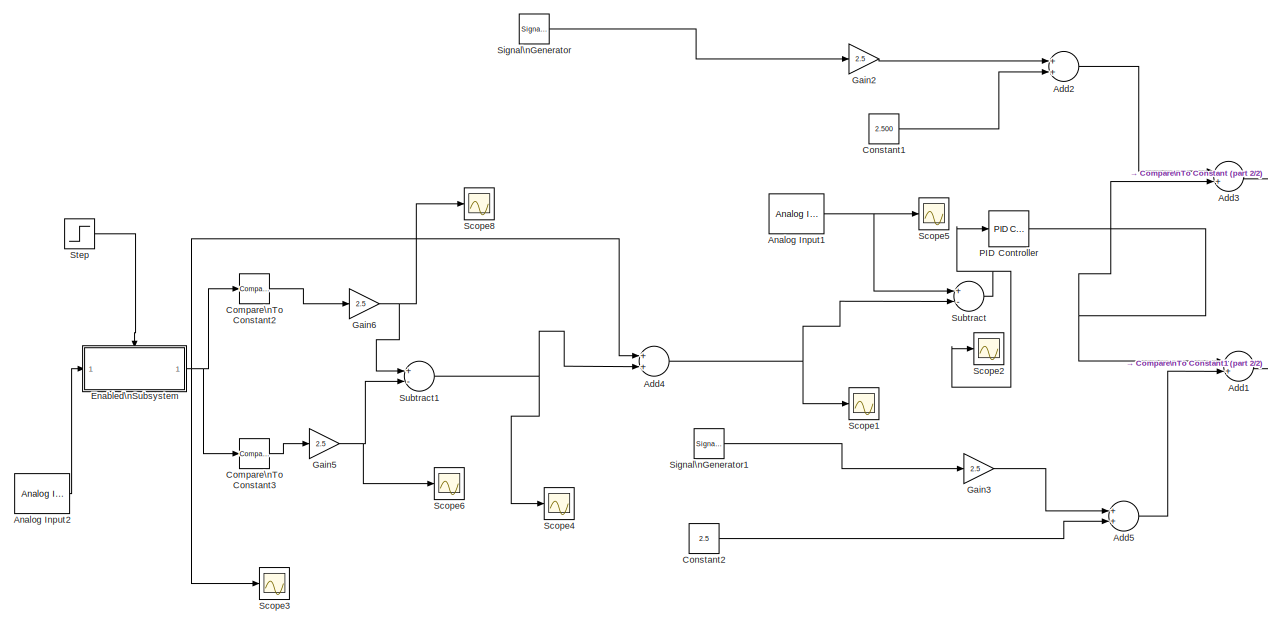
[diagram: root canvas - part 1/2, most of the canvas]
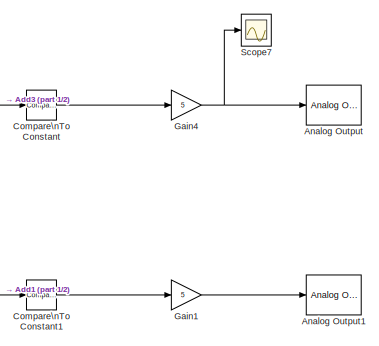
[diagram: root canvas - part 2/2, middle right region]
MODEL exp1slx
KIND model
BLOCK [Sum] Add1
  InputSameDT = off
  Inputs = -+
  OutDataTypeStr = Inherit: Inherit via internal rule
  Ports = [2, 1]
  SID = 44
  SaturateOnIntegerOverflow = off
BLOCK [Sum] Add2
  InputSameDT = off
  OutDataTypeStr = Inherit: Inherit via internal rule
  Ports = [2, 1]
  SID = 48
  SaturateOnIntegerOverflow = off
BLOCK [Sum] Add3
  InputSameDT = off
  Inputs = -+
  OutDataTypeStr = Inherit: Inherit via internal rule
  Ports = [2, 1]
  SID = 40
  SaturateOnIntegerOverflow = off
BLOCK [Sum] Add4
  InputSameDT = off
  OutDataTypeStr = Inherit: Inherit via internal rule
  Ports = [2, 1]
  SID = 92
  SaturateOnIntegerOverflow = off
BLOCK [Sum] Add5
  InputSameDT = off
  OutDataTypeStr = Inherit: Inherit via internal rule
  Ports = [2, 1]
  SID = 51
  SaturateOnIntegerOverflow = off
BLOCK [Reference] Analog Input1  REF=rtwinlib/Analog Input
  AttributesFormatString = National Instruments\\nPCI-6221 37-pin [0h]
  Channels = 1
  DataType = 1
  DrvAddress = 0
  DrvName = National_Instruments/PCI-6221_37-pin
  DrvOptions = [0 3 0 0 0]
  MaxMissedTicks = 10000
  Ports = [0, 1]
  RangeMode = 1
  SID = 54
  SampleTime = 0.001
  ShowMissedTicks = off
  SourceBlock = rtwinlib/Analog Input
  SourceType = RTWin Analog Input
  VoltRange = 1
  YieldWhenWaiting = off
BLOCK [Reference] Analog Input2  REF=rtwinlib/Analog Input
  AttributesFormatString = National Instruments\\nPCI-6221 37-pin [0h]
  Channels = 1
  DataType = 1
  DrvAddress = 0
  DrvName = National_Instruments/PCI-6221_37-pin
  DrvOptions = [0 3 0 0 0]
  MaxMissedTicks = 10000
  Ports = [0, 1]
  RangeMode = 1
  SID = 85
  SampleTime = 0.001
  ShowMissedTicks = off
  SourceBlock = rtwinlib/Analog Input
  SourceType = RTWin Analog Input
  VoltRange = 1
  YieldWhenWaiting = off
BLOCK [Reference] Analog Output  REF=rtwinlib/Analog Output
  AttributesFormatString = National Instruments\\nPCI-6221 37-pin [0h]
  Channels = 1
  DrvAddress = 0
  DrvName = National_Instruments/PCI-6221_37-pin
  DrvOptions = [0 3 0 0 0]
  FinalValue = 0
  InitialValue = 0
  MaxMissedTicks = 10000
  Ports = [1]
  RangeMode = 1
  SID = 41
  SampleTime = 0.001
  ShowMissedTicks = off
  SourceBlock = rtwinlib/Analog Output
  SourceType = RTWin Analog Output
  VoltRange = 1
  YieldWhenWaiting = off
BLOCK [Reference] Analog Output1  REF=rtwinlib/Analog Output
  AttributesFormatString = National Instruments\\nPCI-6221 37-pin [0h]
  Channels = 2
  DrvAddress = 0
  DrvName = National_Instruments/PCI-6221_37-pin
  DrvOptions = [0 3 0 0 0]
  FinalValue = 0
  InitialValue = 0
  MaxMissedTicks = 10000
  Ports = [1]
  RangeMode = 1
  SID = 45
  SampleTime = 0.001
  ShowMissedTicks = off
  SourceBlock = rtwinlib/Analog Output
  SourceType = RTWin Analog Output
  VoltRange = 1
  YieldWhenWaiting = off
BLOCK [Reference] Compare\nTo Constant  REF=simulink/Logic and Bit\nOperations/Compare\nTo Constant
  OutDataTypeStr = uint8
  Ports = [1, 1]
  SID = 42
  SourceBlock = simulink/Logic and Bit\nOperations/Compare\nTo Constant
  SourceType = Compare To Constant
  ZeroCross = on
  const = 0
  relop = <=
BLOCK [Reference] Compare\nTo Constant1  REF=simulink/Logic and Bit\nOperations/Compare\nTo Constant
  OutDataTypeStr = uint8
  Ports = [1, 1]
  SID = 46
  SourceBlock = simulink/Logic and Bit\nOperations/Compare\nTo Constant
  SourceType = Compare To Constant
  ZeroCross = on
  const = 0
  relop = <=
BLOCK [Reference] Compare\nTo Constant2  REF=simulink/Logic and Bit\nOperations/Compare\nTo Constant
  OutDataTypeStr = boolean
  Ports = [1, 1]
  SID = 97
  SourceBlock = simulink/Logic and Bit\nOperations/Compare\nTo Constant
  SourceType = Compare To Constant
  ZeroCross = on
  const = 2.5
  relop = <=
BLOCK [Reference] Compare\nTo Constant3  REF=simulink/Logic and Bit\nOperations/Compare\nTo Constant
  OutDataTypeStr = boolean
  Ports = [1, 1]
  SID = 98
  SourceBlock = simulink/Logic and Bit\nOperations/Compare\nTo Constant
  SourceType = Compare To Constant
  ZeroCross = on
  const = 2.5
  relop = >=
BLOCK [Constant] Constant1
  SID = 49
  Value = 2.500
BLOCK [Constant] Constant2
  SID = 52
  Value = 2.5
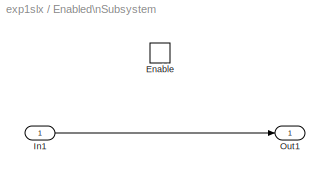
BLOCK [SubSystem] Enabled\nSubsystem
  FunctionWithSeparateData = off
  MaskHideContents = off
  MinAlgLoopOccurrences = off
  Opaque = off
  Ports = [1, 1, 1]
  PropExecContextOutsideSubsystem = off
  RTWSystemCode = Auto
  RequestExecContextInheritance = off
  SID = 87
  TreatAsAtomicUnit = on
BLOCK [EnablePort] Enabled\nSubsystem/Enable
  Ports = []
  SID = 89
BLOCK [Inport] Enabled\nSubsystem/In1
  IconDisplay = Port number
  SID = 88
BLOCK [Outport] Enabled\nSubsystem/Out1
  IconDisplay = Port number
  SID = 90
BLOCK [Gain] Gain1
  Gain = 5
  OutMin = 0
  ParamDataTypeStr = Inherit: Inherit via internal rule
  ParamMin = 0
  RndMeth = Ceiling
  SID = 47
  SaturateOnIntegerOverflow = off
BLOCK [Gain] Gain2
  Gain = 2.5
  OutMin = 0
  ParamDataTypeStr = Inherit: Inherit via internal rule
  ParamMin = 0
  RndMeth = Ceiling
  SID = 62
  SaturateOnIntegerOverflow = off
BLOCK [Gain] Gain3
  Gain = 2.5
  OutMin = 0
  ParamDataTypeStr = Inherit: Inherit via internal rule
  ParamMin = 0
  RndMeth = Ceiling
  SID = 65
  SaturateOnIntegerOverflow = off
BLOCK [Gain] Gain4
  Gain = 5
  OutMin = 0
  ParamDataTypeStr = Inherit: Inherit via internal rule
  ParamMin = 0
  RndMeth = Ceiling
  SID = 43
  SaturateOnIntegerOverflow = off
BLOCK [Gain] Gain5
  Gain = 2.5
  OutDataTypeStr = double
  OutMin = 0
  ParamDataTypeStr = Inherit: Inherit via internal rule
  ParamMin = 0
  RndMeth = Ceiling
  SID = 108
  SaturateOnIntegerOverflow = off
BLOCK [Gain] Gain6
  Gain = 2.5
  OutDataTypeStr = double
  OutMin = 0
  ParamDataTypeStr = Inherit: Inherit via internal rule
  ParamMin = 0
  RndMeth = Ceiling
  SID = 109
  SaturateOnIntegerOverflow = off
BLOCK [Reference] PID Controller  REF=simulink/Continuous/PID Controller
  AntiWindupMode = none
  Controller = PID
  D = 1
  DOutDataTypeStr = Inherit: Inherit via internal rule
  DOutMax = []
  DOutMin = []
  DParamDataTypeStr = Inherit: Inherit via internal rule
  DParamMax = []
  DParamMin = []
  ExternalReset = none
  FilterContinuousStateAttributes = ''
  FilterMethod = Forward Euler
  FilterOutDataTypeStr = Inherit: Inherit via internal rule
  FilterOutMax = []
  FilterOutMin = []
  FilterRTWStateStorageClass = Auto
  FilterStateMustResolveToSignalObject = off
  Form = Parallel
  I = 1
  IOutDataTypeStr = Inherit: Inherit via internal rule
  IOutMax = []
  IOutMin = []
  IParamDataTypeStr = Inherit: Inherit via internal rule
  IParamMax = []
  IParamMin = []
  IgnoreLimit = off
  InitialConditionForFilter = 0
  InitialConditionForIntegrator = 0
  InitialConditionSource = internal
  IntegratorContinuousStateAttributes = ''
  IntegratorMethod = Forward Euler
  IntegratorOutDataTypeStr = Inherit: Inherit via internal rule
  IntegratorOutMax = []
  IntegratorOutMin = []
  IntegratorRTWStateStorageClass = Auto
  IntegratorStateMustResolveToSignalObject = off
  Kb = 1
  KbOutDataTypeStr = Inherit: Inherit via internal rule
  KbOutMax = []
  KbOutMin = []
  KbParamDataTypeStr = Inherit: Inherit via internal rule
  KbParamMax = []
  KbParamMin = []
  Kt = 1
  KtOutDataTypeStr = Inherit: Inherit via internal rule
  KtOutMax = []
  KtOutMin = []
  KtParamDataTypeStr = Inherit: Inherit via internal rule
  KtParamMax = []
  KtParamMin = []
  LimitOutput = off
  LinearizeAsGain = on
  LockScale = off
  LowerSaturationLimit = -inf
  N = 100
  NOutDataTypeStr = Inherit: Inherit via internal rule
  NOutMax = []
  NOutMin = []
  NParamDataTypeStr = Inherit: Inherit via internal rule
  NParamMax = []
  NParamMin = []
  P = 60
  POutDataTypeStr = Inherit: Inherit via internal rule
  POutMax = []
  POutMin = []
  PParamDataTypeStr = Inherit: Inherit via internal rule
  PParamMax = []
  PParamMin = []
  Ports = [1, 1]
  RndMeth = Floor
  SID = 5
  SampleTime = 1
  SaturateOnIntegerOverflow = off
  SaturationOutDataTypeStr = Inherit: Same as input
  SaturationOutMax = []
  SaturationOutMin = []
  SourceBlock = simulink/Continuous/PID Controller
  SourceType = PID 1dof
  SumAccumDataTypeStr = Inherit: Inherit via internal rule
  SumDAccumDataTypeStr = Inherit: Inherit via internal rule
  SumDOutDataTypeStr = Inherit: Inherit via internal rule
  SumDOutMax = []
  SumDOutMin = []
  SumI1AccumDataTypeStr = Inherit: Inherit via internal rule
  SumI1OutDataTypeStr = Inherit: Inherit via internal rule
  SumI1OutMax = []
  SumI1OutMin = []
  SumI2AccumDataTypeStr = Inherit: Inherit via internal rule
  SumI2OutDataTypeStr = Inherit: Inherit via internal rule
  SumI2OutMax = []
  SumI2OutMin = []
  SumI3AccumDataTypeStr = Inherit: Inherit via internal rule
  SumI3OutDataTypeStr = Inherit: Inherit via internal rule
  SumI3OutMax = []
  SumI3OutMin = []
  SumOutDataTypeStr = Inherit: Inherit via internal rule
  SumOutMax = []
  SumOutMin = []
  TimeDomain = Continuous-time
  TrackingMode = off
  UpperSaturationLimit = inf
  ZeroCross = on
BLOCK [Scope] Scope1
  DataFormat = StructureWithTime
  Floating = off
  MaxDataPoints = 1000000
  NumInputPorts = 1
  Ports = [1]
  SID = 95
  SampleTime = 0
  SaveName = ScopeData1
  SaveToWorkspace = on
  ShowLegends = off
  TimeRange = 10
  YMax = 3.5
  YMin = -3
BLOCK [Scope] Scope2
  DataFormat = StructureWithTime
  Floating = off
  MaxDataPoints = 1000000
  NumInputPorts = 1
  Ports = [1]
  SID = 55
  SampleTime = 0
  SaveToWorkspace = on
  ShowLegends = off
  TimeRange = 2
  YMax = 2.205806010928962
  YMin = 0.8058060109289615
BLOCK [Scope] Scope3
  DataFormat = StructureWithTime
  Floating = off
  MaxDataPoints = 1000000
  NumInputPorts = 1
  Ports = [1]
  SID = 102
  SampleTime = 0
  SaveName = ScopeData2
  SaveToWorkspace = on
  ShowLegends = off
  TimeRange = 10
  YMax = 3.5
  YMin = -3
BLOCK [Scope] Scope4
  DataFormat = StructureWithTime
  Floating = off
  MaxDataPoints = 1000000
  NumInputPorts = 1
  Ports = [1]
  SID = 103
  SampleTime = 0
  SaveName = ScopeData3
  SaveToWorkspace = on
  ShowLegends = off
  TimeRange = 10
  YMax = 3.5
  YMin = -3
BLOCK [Scope] Scope5
  DataFormat = StructureWithTime
  Floating = off
  MaxDataPoints = 1000000
  NumInputPorts = 1
  Ports = [1]
  SID = 110
  SampleTime = 0
  SaveName = ScopeData4
  SaveToWorkspace = on
  ShowLegends = off
  TimeRange = 10
  YMax = 3.5
  YMin = -3
BLOCK [Scope] Scope6
  DataFormat = StructureWithTime
  Floating = off
  MaxDataPoints = 1000000
  NumInputPorts = 1
  Ports = [1]
  SID = 105
  SampleTime = 0
  SaveName = ScopeData5
  SaveToWorkspace = on
  ShowLegends = off
  TimeRange = 10
  YMax = 3.5
  YMin = -3
BLOCK [Scope] Scope7
  DataFormat = StructureWithTime
  Floating = off
  MaxDataPoints = 1000000
  NumInputPorts = 1
  Ports = [1]
  SID = 111
  SampleTime = 0
  SaveName = ScopeData6
  SaveToWorkspace = on
  ShowLegends = off
  TimeRange = 10
  YMax = 3.5
  YMin = -3
BLOCK [Scope] Scope8
  DataFormat = StructureWithTime
  Floating = off
  MaxDataPoints = 1000000
  NumInputPorts = 1
  Ports = [1]
  SID = 107
  SampleTime = 0
  SaveName = ScopeData7
  SaveToWorkspace = on
  ShowLegends = off
  TimeRange = 10
  YMax = 3.5
  YMin = -3
BLOCK [SignalGenerator] Signal\nGenerator
  Frequency = 200
  Ports = [0, 1]
  SID = 72
  WaveForm = sawtooth
BLOCK [SignalGenerator] Signal\nGenerator1
  Frequency = 1000
  Ports = [0, 1]
  SID = 83
  WaveForm = sawtooth
BLOCK [Step] Step
  After = 0
  Before = 1
  SID = 86
  SampleTime = 0
  Time = 0.01
BLOCK [Sum] Subtract
  InputSameDT = off
  Inputs = +-
  OutDataTypeStr = Inherit: Inherit via internal rule
  Ports = [2, 1]
  SID = 91
  SaturateOnIntegerOverflow = off
BLOCK [Sum] Subtract1
  InputSameDT = off
  Inputs = +-
  OutDataTypeStr = Inherit: Inherit via internal rule
  Ports = [2, 1]
  SID = 101
  SaturateOnIntegerOverflow = off
LINE Add1:1 -> Compare\nTo Constant1:1
LINE Add2:1 -> Add3:1
LINE Add3:1 -> Compare\nTo Constant:1
NET Add4:1 -> Scope1:1, Subtract:2
LINE Add5:1 -> Add1:2
NET Analog Input1:1 -> Scope5:1, Subtract:1
LINE Analog Input2:1 -> Enabled\nSubsystem:1
LINE Compare\nTo Constant1:1 -> Gain1:1
LINE Compare\nTo Constant2:1 -> Gain6:1
LINE Compare\nTo Constant3:1 -> Gain5:1
LINE Compare\nTo Constant:1 -> Gain4:1
LINE Constant1:1 -> Add2:2
LINE Constant2:1 -> Add5:2
LINE Enabled\nSubsystem/In1:1 -> Enabled\nSubsystem/Out1:1
NET Enabled\nSubsystem:1 -> Add4:1, Compare\nTo Constant2:1, Compare\nTo Constant3:1, Scope3:1
LINE Gain1:1 -> Analog Output1:1
LINE Gain2:1 -> Add2:1
LINE Gain3:1 -> Add5:1
NET Gain4:1 -> Analog Output:1, Scope7:1
NET Gain5:1 -> Scope6:1, Subtract1:2
NET Gain6:1 -> Scope8:1, Subtract1:1
NET PID Controller:1 -> Add1:1, Add3:2
LINE Signal\nGenerator1:1 -> Gain3:1
LINE Signal\nGenerator:1 -> Gain2:1
LINE Step:1 -> Enabled\nSubsystem:enable
NET Subtract1:1 -> Add4:2, Scope4:1
NET Subtract:1 -> PID Controller:1, Scope2:1
note: NET lines group one-source signal fan-out (src -> all destinations, sorted); 1:1 wires keep LINE
